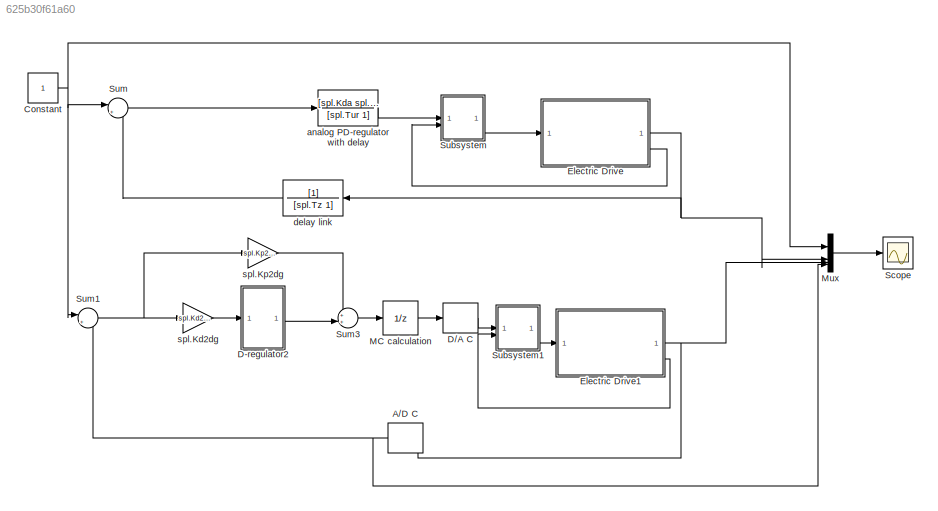
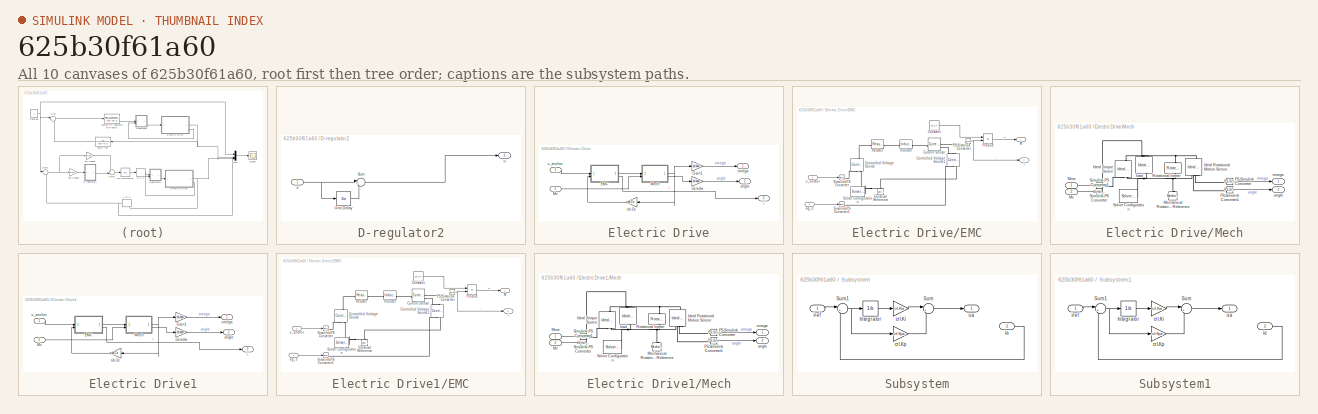
[diagram: thumbnail index - all 10 canvases of the model, root first then tree order]
MODEL slx_625b30f61a60
KIND model
CONFIG AbsTol = auto
CONFIG EnableMultiTasking = off
CONFIG FixedStep = To/100
CONFIG MaxStep = auto
CONFIG MinStep = auto
CONFIG RelTol = 1e-3
CONFIG SampleTimeConstraint = Unconstrained
CONFIG SolverName = ode3
CONFIG StartTime = 0.0
CONFIG StopTime = Tmdl
BLOCK [ZeroOrderHold] A//D C
  SampleTime = To
BLOCK [Constant] Constant
BLOCK [SubSystem] D-regulator2
BLOCK [Sum] D-regulator2/Sum
  Inputs = |+-
BLOCK [UnitDelay] D-regulator2/Unit Delay
  HasFrameUpgradeWarning = on
  SampleTime = To
BLOCK [Inport] D-regulator2/e
BLOCK [Outport] D-regulator2/u
BLOCK [ZeroOrderHold] D//A C
  SampleTime = To
BLOCK [SubSystem] Electric Drive
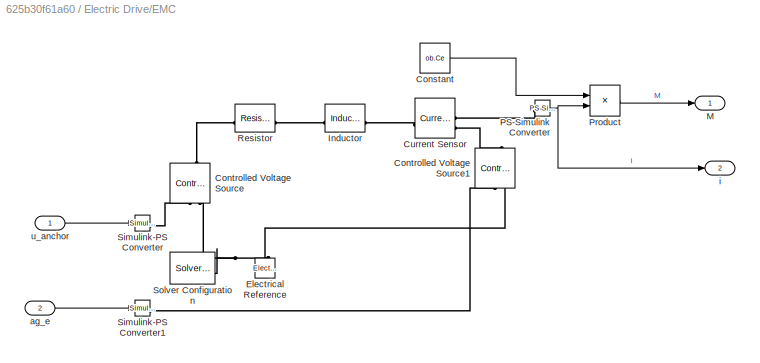
BLOCK [SubSystem] Electric Drive/EMC
BLOCK [Constant] Electric Drive/EMC/Constant
  Value = ob.Ce
BLOCK [Reference] Electric Drive/EMC/Controlled Voltage Source  REF=fl_lib/Electrical/Electrical Sources/Controlled Voltage
Source
  NameLocation = right
  SourceBlock = fl_lib/Electrical/Electrical Sources/Controlled Voltage\nSource
  SourceType = Controlled Voltage\nSource
BLOCK [Reference] Electric Drive/EMC/Controlled Voltage Source1  REF=fl_lib/Electrical/Electrical Sources/Controlled Voltage
Source
  NameLocation = right
  SourceBlock = fl_lib/Electrical/Electrical Sources/Controlled Voltage\nSource
  SourceType = Controlled Voltage\nSource
BLOCK [Reference] Electric Drive/EMC/Current Sensor  REF=fl_lib/Electrical/Electrical Sensors/Current Sensor
  SourceBlock = fl_lib/Electrical/Electrical Sensors/Current Sensor
  SourceType = Current Sensor
BLOCK [Reference] Electric Drive/EMC/Electrical Reference  REF=fl_lib/Electrical/Electrical Elements/Electrical Reference
  NameLocation = right
  SourceBlock = fl_lib/Electrical/Electrical Elements/Electrical Reference
  SourceType = Electrical Reference
BLOCK [Reference] Electric Drive/EMC/Inductor  REF=fl_lib/Electrical/Electrical Elements/Inductor
  SourceBlock = fl_lib/Electrical/Electrical Elements/Inductor
  SourceType = Inductor
BLOCK [Outport] Electric Drive/EMC/M
BLOCK [Reference] Electric Drive/EMC/PS-Simulink Converter  REF=nesl_utility/PS-Simulink
Converter
  SourceBlock = nesl_utility/PS-Simulink\nConverter
  SourceType = PS-Simulink\nConverter
BLOCK [Product] Electric Drive/EMC/Product
BLOCK [Reference] Electric Drive/EMC/Resistor  REF=fl_lib/Electrical/Electrical Elements/Resistor
  SourceBlock = fl_lib/Electrical/Electrical Elements/Resistor
  SourceType = Resistor
BLOCK [Reference] Electric Drive/EMC/Simulink-PS Converter  REF=nesl_utility/Simulink-PS
Converter
  SourceBlock = nesl_utility/Simulink-PS\nConverter
  SourceType = Simulink-PS\nConverter
BLOCK [Reference] Electric Drive/EMC/Simulink-PS Converter1  REF=nesl_utility/Simulink-PS
Converter
  SourceBlock = nesl_utility/Simulink-PS\nConverter
  SourceType = Simulink-PS\nConverter
BLOCK [Reference] Electric Drive/EMC/Solver Configuration  REF=nesl_utility/Solver
Configuration
  SourceBlock = nesl_utility/Solver\nConfiguration
  SourceType = Solver\nConfiguration
BLOCK [Inport] Electric Drive/EMC/ag_e
  Port = 2
BLOCK [Outport] Electric Drive/EMC/i
  Port = 2
BLOCK [Inport] Electric Drive/EMC/u_anchor
BLOCK [Gain] Electric Drive/Gain1
  Gain = ob.kdw
BLOCK [Inport] Electric Drive/Mc
  Port = 2
BLOCK [SubSystem] Electric Drive/Mech
BLOCK [Reference] Electric Drive/Mech/Ideal Rotational Motion Sensor  REF=fl_lib/Mechanical/Mechanical Sensors/Ideal Rotational
Motion Sensor
  NameLocation = left
  SourceBlock = fl_lib/Mechanical/Mechanical Sensors/Ideal Rotational\nMotion Sensor
  SourceType = Ideal Rotational\nMotion Sensor
BLOCK [Reference] Electric Drive/Mech/Ideal Torque Source  REF=fl_lib/Mechanical/Mechanical Sources/Ideal Torque Source
  NameLocation = right
  SourceBlock = fl_lib/Mechanical/Mechanical Sources/Ideal Torque Source
  SourceType = Ideal Torque Source
BLOCK [Inport] Electric Drive/Mech/Mc
  Port = 2
BLOCK [Reference] Electric Drive/Mech/Mechanical Rotational Reference  REF=fl_lib/Mechanical/Rotational Elements/Mechanical
Rotational Reference
  NameLocation = right
  SourceBlock = fl_lib/Mechanical/Rotational Elements/Mechanical\nRotational Reference
  SourceType = Mechanical\nRotational Reference
BLOCK [Inport] Electric Drive/Mech/Mme
BLOCK [Reference] Electric Drive/Mech/PS-Simulink Converter  REF=nesl_utility/PS-Simulink
Converter
  SourceBlock = nesl_utility/PS-Simulink\nConverter
  SourceType = PS-Simulink\nConverter
BLOCK [Reference] Electric Drive/Mech/PS-Simulink Converter1  REF=nesl_utility/PS-Simulink
Converter
  SourceBlock = nesl_utility/PS-Simulink\nConverter
  SourceType = PS-Simulink\nConverter
BLOCK [Reference] Electric Drive/Mech/Rotational Inerter  REF=fl_lib/Mechanical/Rotational Elements/Rotational Inerter
  NameLocation = left
  SourceBlock = fl_lib/Mechanical/Rotational Elements/Rotational Inerter
  SourceType = Rotational Inerter
BLOCK [Reference] Electric Drive/Mech/Simulink-PS Converter  REF=nesl_utility/Simulink-PS
Converter
  SourceBlock = nesl_utility/Simulink-PS\nConverter
  SourceType = Simulink-PS\nConverter
BLOCK [Reference] Electric Drive/Mech/Simulink-PS Converter1  REF=nesl_utility/Simulink-PS
Converter
  SourceBlock = nesl_utility/Simulink-PS\nConverter
  SourceType = Simulink-PS\nConverter
BLOCK [Reference] Electric Drive/Mech/Solver Configuration  REF=nesl_utility/Solver
Configuration
  SourceBlock = nesl_utility/Solver\nConfiguration
  SourceType = Solver\nConfiguration
BLOCK [Outport] Electric Drive/Mech/angle
  Port = 2
BLOCK [Reference] Electric Drive/Mech/load  REF=fl_lib/Mechanical/Mechanical Sources/Ideal Torque Source
  SourceBlock = fl_lib/Mechanical/Mechanical Sources/Ideal Torque Source
  SourceType = Ideal Torque Source
BLOCK [Outport] Electric Drive/Mech/omega
BLOCK [Outport] Electric Drive/angle
  Port = 2
BLOCK [Outport] Electric Drive/i
  Port = 3
BLOCK [Gain] Electric Drive/ob.Ce
  Gain = ob.Ce
BLOCK [Gain] Electric Drive/ob.kdw
  Gain = ob.kdw
  NameLocation = top
BLOCK [Outport] Electric Drive/omega
BLOCK [Inport] Electric Drive/u_anchor
BLOCK [SubSystem] Electric Drive1
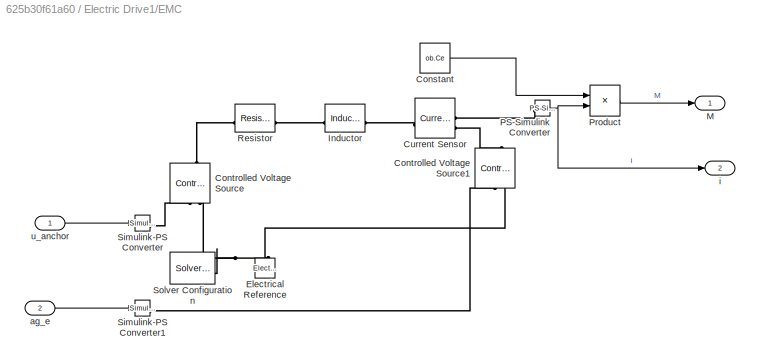
BLOCK [SubSystem] Electric Drive1/EMC
BLOCK [Constant] Electric Drive1/EMC/Constant
  Value = ob.Ce
BLOCK [Reference] Electric Drive1/EMC/Controlled Voltage Source  REF=fl_lib/Electrical/Electrical Sources/Controlled Voltage
Source
  NameLocation = right
  SourceBlock = fl_lib/Electrical/Electrical Sources/Controlled Voltage\nSource
  SourceType = Controlled Voltage\nSource
BLOCK [Reference] Electric Drive1/EMC/Controlled Voltage Source1  REF=fl_lib/Electrical/Electrical Sources/Controlled Voltage
Source
  NameLocation = right
  SourceBlock = fl_lib/Electrical/Electrical Sources/Controlled Voltage\nSource
  SourceType = Controlled Voltage\nSource
BLOCK [Reference] Electric Drive1/EMC/Current Sensor  REF=fl_lib/Electrical/Electrical Sensors/Current Sensor
  SourceBlock = fl_lib/Electrical/Electrical Sensors/Current Sensor
  SourceType = Current Sensor
BLOCK [Reference] Electric Drive1/EMC/Electrical Reference  REF=fl_lib/Electrical/Electrical Elements/Electrical Reference
  NameLocation = right
  SourceBlock = fl_lib/Electrical/Electrical Elements/Electrical Reference
  SourceType = Electrical Reference
BLOCK [Reference] Electric Drive1/EMC/Inductor  REF=fl_lib/Electrical/Electrical Elements/Inductor
  SourceBlock = fl_lib/Electrical/Electrical Elements/Inductor
  SourceType = Inductor
BLOCK [Outport] Electric Drive1/EMC/M
BLOCK [Reference] Electric Drive1/EMC/PS-Simulink Converter  REF=nesl_utility/PS-Simulink
Converter
  SourceBlock = nesl_utility/PS-Simulink\nConverter
  SourceType = PS-Simulink\nConverter
BLOCK [Product] Electric Drive1/EMC/Product
BLOCK [Reference] Electric Drive1/EMC/Resistor  REF=fl_lib/Electrical/Electrical Elements/Resistor
  SourceBlock = fl_lib/Electrical/Electrical Elements/Resistor
  SourceType = Resistor
BLOCK [Reference] Electric Drive1/EMC/Simulink-PS Converter  REF=nesl_utility/Simulink-PS
Converter
  SourceBlock = nesl_utility/Simulink-PS\nConverter
  SourceType = Simulink-PS\nConverter
BLOCK [Reference] Electric Drive1/EMC/Simulink-PS Converter1  REF=nesl_utility/Simulink-PS
Converter
  SourceBlock = nesl_utility/Simulink-PS\nConverter
  SourceType = Simulink-PS\nConverter
BLOCK [Reference] Electric Drive1/EMC/Solver Configuration  REF=nesl_utility/Solver
Configuration
  SourceBlock = nesl_utility/Solver\nConfiguration
  SourceType = Solver\nConfiguration
BLOCK [Inport] Electric Drive1/EMC/ag_e
  Port = 2
BLOCK [Outport] Electric Drive1/EMC/i
  Port = 2
BLOCK [Inport] Electric Drive1/EMC/u_anchor
BLOCK [Gain] Electric Drive1/Gain1
  Gain = ob.kdw
BLOCK [Inport] Electric Drive1/Mc
  Port = 2
BLOCK [SubSystem] Electric Drive1/Mech
BLOCK [Reference] Electric Drive1/Mech/Ideal Rotational Motion Sensor  REF=fl_lib/Mechanical/Mechanical Sensors/Ideal Rotational
Motion Sensor
  NameLocation = left
  SourceBlock = fl_lib/Mechanical/Mechanical Sensors/Ideal Rotational\nMotion Sensor
  SourceType = Ideal Rotational\nMotion Sensor
BLOCK [Reference] Electric Drive1/Mech/Ideal Torque Source  REF=fl_lib/Mechanical/Mechanical Sources/Ideal Torque Source
  NameLocation = right
  SourceBlock = fl_lib/Mechanical/Mechanical Sources/Ideal Torque Source
  SourceType = Ideal Torque Source
BLOCK [Inport] Electric Drive1/Mech/Mc
  Port = 2
BLOCK [Reference] Electric Drive1/Mech/Mechanical Rotational Reference  REF=fl_lib/Mechanical/Rotational Elements/Mechanical
Rotational Reference
  NameLocation = right
  SourceBlock = fl_lib/Mechanical/Rotational Elements/Mechanical\nRotational Reference
  SourceType = Mechanical\nRotational Reference
BLOCK [Inport] Electric Drive1/Mech/Mme
BLOCK [Reference] Electric Drive1/Mech/PS-Simulink Converter  REF=nesl_utility/PS-Simulink
Converter
  SourceBlock = nesl_utility/PS-Simulink\nConverter
  SourceType = PS-Simulink\nConverter
BLOCK [Reference] Electric Drive1/Mech/PS-Simulink Converter1  REF=nesl_utility/PS-Simulink
Converter
  SourceBlock = nesl_utility/PS-Simulink\nConverter
  SourceType = PS-Simulink\nConverter
BLOCK [Reference] Electric Drive1/Mech/Rotational Inerter  REF=fl_lib/Mechanical/Rotational Elements/Rotational Inerter
  NameLocation = left
  SourceBlock = fl_lib/Mechanical/Rotational Elements/Rotational Inerter
  SourceType = Rotational Inerter
BLOCK [Reference] Electric Drive1/Mech/Simulink-PS Converter  REF=nesl_utility/Simulink-PS
Converter
  SourceBlock = nesl_utility/Simulink-PS\nConverter
  SourceType = Simulink-PS\nConverter
BLOCK [Reference] Electric Drive1/Mech/Simulink-PS Converter1  REF=nesl_utility/Simulink-PS
Converter
  SourceBlock = nesl_utility/Simulink-PS\nConverter
  SourceType = Simulink-PS\nConverter
BLOCK [Reference] Electric Drive1/Mech/Solver Configuration  REF=nesl_utility/Solver
Configuration
  SourceBlock = nesl_utility/Solver\nConfiguration
  SourceType = Solver\nConfiguration
BLOCK [Outport] Electric Drive1/Mech/angle
  Port = 2
BLOCK [Reference] Electric Drive1/Mech/load  REF=fl_lib/Mechanical/Mechanical Sources/Ideal Torque Source
  SourceBlock = fl_lib/Mechanical/Mechanical Sources/Ideal Torque Source
  SourceType = Ideal Torque Source
BLOCK [Outport] Electric Drive1/Mech/omega
BLOCK [Outport] Electric Drive1/angle
  Port = 2
BLOCK [Outport] Electric Drive1/i
  Port = 3
BLOCK [Gain] Electric Drive1/ob.Ce
  Gain = ob.Ce
BLOCK [Gain] Electric Drive1/ob.kdw
  Gain = ob.kdw
  NameLocation = top
BLOCK [Outport] Electric Drive1/omega
BLOCK [Inport] Electric Drive1/u_anchor
BLOCK [UnitDelay] MC calculation
  HasFrameUpgradeWarning = on
  SampleTime = To
BLOCK [Mux] Mux
  DisplayOption = bar
BLOCK [Scope] Scope
  Floating = off
  NumInputPorts = 1
  ScopeSpecificationString = Simulink.scopes.TimeScopeBlockCfg('CurrentConfiguration', extmgr.ConfigurationSet(extmgr.Configuration('Core','General UI',true),extmgr.Configuration('Core','Source UI',true),extmgr.Configuration('Sources','WiredSimulink',true,'DataLogging',true,'DataLoggingVariableName','w','DataLoggingSaveFormat','Array'),extmgr.Configuration('Visuals','Time Domain',true,'SerializedDisplays',{struct('MinYLimReal...<+1489ch>
BLOCK [SubSystem] Subsystem
BLOCK [Integrator] Subsystem/Integrator
BLOCK [Sum] Subsystem/Sum
  Inputs = |++
BLOCK [Sum] Subsystem/Sum1
  Inputs = |+-
BLOCK [Gain] Subsystem/crl.Ki
  Gain = crl.Kia
BLOCK [Gain] Subsystem/crl.Kp
  Gain = crl.Kpa
BLOCK [Inport] Subsystem/ia
  Port = 2
BLOCK [Inport] Subsystem/iref
BLOCK [Outport] Subsystem/ua
BLOCK [SubSystem] Subsystem1
BLOCK [Integrator] Subsystem1/Integrator
BLOCK [Sum] Subsystem1/Sum
  Inputs = |++
BLOCK [Sum] Subsystem1/Sum1
  Inputs = |+-
BLOCK [Gain] Subsystem1/crl.Ki
  Gain = crl.Kia
BLOCK [Gain] Subsystem1/crl.Kp
  Gain = crl.Kpa
BLOCK [Inport] Subsystem1/ia
  Port = 2
BLOCK [Inport] Subsystem1/iref
BLOCK [Outport] Subsystem1/ua
BLOCK [Sum] Sum
  Inputs = |+-
BLOCK [Sum] Sum1
  Inputs = |+-
BLOCK [Sum] Sum3
  Inputs = ++|
BLOCK [TransferFcn] analog PD-regulator with delay
  Denominator = [spl.Tur 1]
  Numerator = [spl.Kda spl.Kpa]
BLOCK [TransferFcn] delay link
  Denominator = [spl.Tz 1]
BLOCK [Gain] spl.Kd2dg
  Gain = spl.Kd2dg
BLOCK [Gain] spl.Kp2dg
  Gain = spl.Kp2dg
NET A//D C:1 -> Mux:4, Sum1:2
NET Constant:1 -> Mux:1, Sum1:1, Sum:1
LINE D-regulator2/Sum:1 -> D-regulator2/u:1
LINE D-regulator2/Unit Delay:1 -> D-regulator2/Sum:2
NET D-regulator2/e:1 -> D-regulator2/Sum:1, D-regulator2/Unit Delay:1
LINE D-regulator2:1 -> Sum3:2
LINE D//A C:1 -> Subsystem1:1
LINE Electric Drive/EMC/Constant:1 -> Electric Drive/EMC/Product:1
NET Electric Drive/EMC/PS-Simulink Converter:1 -> Electric Drive/EMC/Product:2, Electric Drive/EMC/i:1
LINE Electric Drive/EMC/Product:1 -> Electric Drive/EMC/M:1
LINE Electric Drive/EMC/ag_e:1 -> Electric Drive/EMC/Simulink-PS Converter1:1
LINE Electric Drive/EMC/u_anchor:1 -> Electric Drive/EMC/Simulink-PS Converter:1
LINE Electric Drive/EMC:1 -> Electric Drive/Mech:1
LINE Electric Drive/EMC:2 -> Electric Drive/i:1
LINE Electric Drive/Gain1:1 -> Electric Drive/omega:1
LINE Electric Drive/Mc:1 -> Electric Drive/Mech:2
LINE Electric Drive/Mech/Mc:1 -> Electric Drive/Mech/Simulink-PS Converter1:1
LINE Electric Drive/Mech/Mme:1 -> Electric Drive/Mech/Simulink-PS Converter:1
LINE Electric Drive/Mech/PS-Simulink Converter1:1 -> Electric Drive/Mech/angle:1
LINE Electric Drive/Mech/PS-Simulink Converter:1 -> Electric Drive/Mech/omega:1
NET Electric Drive/Mech:1 -> Electric Drive/Gain1:1, Electric Drive/ob.Ce:1
LINE Electric Drive/Mech:2 -> Electric Drive/ob.kdw:1
LINE Electric Drive/ob.Ce:1 -> Electric Drive/EMC:2
LINE Electric Drive/ob.kdw:1 -> Electric Drive/angle:1
LINE Electric Drive/u_anchor:1 -> Electric Drive/EMC:1
LINE Electric Drive1/EMC/Constant:1 -> Electric Drive1/EMC/Product:1
NET Electric Drive1/EMC/PS-Simulink Converter:1 -> Electric Drive1/EMC/Product:2, Electric Drive1/EMC/i:1
LINE Electric Drive1/EMC/Product:1 -> Electric Drive1/EMC/M:1
LINE Electric Drive1/EMC/ag_e:1 -> Electric Drive1/EMC/Simulink-PS Converter1:1
LINE Electric Drive1/EMC/u_anchor:1 -> Electric Drive1/EMC/Simulink-PS Converter:1
LINE Electric Drive1/EMC:1 -> Electric Drive1/Mech:1
LINE Electric Drive1/EMC:2 -> Electric Drive1/i:1
LINE Electric Drive1/Gain1:1 -> Electric Drive1/omega:1
LINE Electric Drive1/Mc:1 -> Electric Drive1/Mech:2
LINE Electric Drive1/Mech/Mc:1 -> Electric Drive1/Mech/Simulink-PS Converter1:1
LINE Electric Drive1/Mech/Mme:1 -> Electric Drive1/Mech/Simulink-PS Converter:1
LINE Electric Drive1/Mech/PS-Simulink Converter1:1 -> Electric Drive1/Mech/angle:1
LINE Electric Drive1/Mech/PS-Simulink Converter:1 -> Electric Drive1/Mech/omega:1
NET Electric Drive1/Mech:1 -> Electric Drive1/Gain1:1, Electric Drive1/ob.Ce:1
LINE Electric Drive1/Mech:2 -> Electric Drive1/ob.kdw:1
LINE Electric Drive1/ob.Ce:1 -> Electric Drive1/EMC:2
LINE Electric Drive1/ob.kdw:1 -> Electric Drive1/angle:1
LINE Electric Drive1/u_anchor:1 -> Electric Drive1/EMC:1
NET Electric Drive1:1 -> A//D C:1, Mux:3
LINE Electric Drive1:3 -> Subsystem1:2
NET Electric Drive:1 -> Mux:2, delay link:1
LINE Electric Drive:3 -> Subsystem:2
LINE MC calculation:1 -> D//A C:1
LINE Mux:1 -> Scope:1
LINE Subsystem/Integrator:1 -> Subsystem/crl.Ki:1
NET Subsystem/Sum1:1 -> Subsystem/Integrator:1, Subsystem/crl.Kp:1
LINE Subsystem/Sum:1 -> Subsystem/ua:1
LINE Subsystem/crl.Ki:1 -> Subsystem/Sum:1
LINE Subsystem/crl.Kp:1 -> Subsystem/Sum:2
LINE Subsystem/ia:1 -> Subsystem/Sum1:2
LINE Subsystem/iref:1 -> Subsystem/Sum1:1
LINE Subsystem1/Integrator:1 -> Subsystem1/crl.Ki:1
NET Subsystem1/Sum1:1 -> Subsystem1/Integrator:1, Subsystem1/crl.Kp:1
LINE Subsystem1/Sum:1 -> Subsystem1/ua:1
LINE Subsystem1/crl.Ki:1 -> Subsystem1/Sum:1
LINE Subsystem1/crl.Kp:1 -> Subsystem1/Sum:2
LINE Subsystem1/ia:1 -> Subsystem1/Sum1:2
LINE Subsystem1/iref:1 -> Subsystem1/Sum1:1
LINE Subsystem1:1 -> Electric Drive1:1
LINE Subsystem:1 -> Electric Drive:1
NET Sum1:1 -> spl.Kd2dg:1, spl.Kp2dg:1
LINE Sum3:1 -> MC calculation:1
LINE Sum:1 -> analog PD-regulator with delay:1
LINE analog PD-regulator with delay:1 -> Subsystem:1
LINE delay link:1 -> Sum:2
LINE spl.Kd2dg:1 -> D-regulator2:1
LINE spl.Kp2dg:1 -> Sum3:1
PLINE Electric Drive/EMC/Controlled Voltage Source1:LConn1 -- Electric Drive/EMC/Current Sensor:RConn2
PLINE Electric Drive/EMC/Controlled Voltage Source1:RConn1 -- Electric Drive/EMC/Simulink-PS Converter1:RConn1
PNET net1: Electric Drive/EMC/Controlled Voltage Source1:RConn2 -- Electric Drive/EMC/Controlled Voltage Source:RConn2 -- Electric Drive/EMC/Electrical Reference:LConn1 -- Electric Drive/EMC/Solver Configuration:RConn1
PLINE Electric Drive/EMC/Controlled Voltage Source:LConn1 -- Electric Drive/EMC/Resistor:LConn1
PLINE Electric Drive/EMC/Controlled Voltage Source:RConn1 -- Electric Drive/EMC/Simulink-PS Converter:RConn1
PLINE Electric Drive/EMC/Current Sensor:LConn1 -- Electric Drive/EMC/Inductor:RConn1
PLINE Electric Drive/EMC/Current Sensor:RConn1 -- Electric Drive/EMC/PS-Simulink Converter:LConn1
PLINE Electric Drive/EMC/Inductor:LConn1 -- Electric Drive/EMC/Resistor:RConn1
PNET net2: Electric Drive/Mech/Ideal Rotational Motion Sensor:LConn1 -- Electric Drive/Mech/Ideal Torque Source:LConn1 -- Electric Drive/Mech/Rotational Inerter:LConn1 -- Electric Drive/Mech/load:RConn2
PNET net3: Electric Drive/Mech/Ideal Rotational Motion Sensor:RConn1 -- Electric Drive/Mech/Ideal Torque Source:RConn2 -- Electric Drive/Mech/Mechanical Rotational Reference:LConn1 -- Electric Drive/Mech/Rotational Inerter:RConn1 -- Electric Drive/Mech/Solver Configuration:RConn1 -- Electric Drive/Mech/load:LConn1
PLINE Electric Drive/Mech/Ideal Rotational Motion Sensor:RConn2 -- Electric Drive/Mech/PS-Simulink Converter:LConn1
PLINE Electric Drive/Mech/Ideal Rotational Motion Sensor:RConn3 -- Electric Drive/Mech/PS-Simulink Converter1:LConn1
PLINE Electric Drive/Mech/Ideal Torque Source:RConn1 -- Electric Drive/Mech/Simulink-PS Converter:RConn1
PLINE Electric Drive/Mech/Simulink-PS Converter1:RConn1 -- Electric Drive/Mech/load:RConn1
PLINE Electric Drive1/EMC/Controlled Voltage Source1:LConn1 -- Electric Drive1/EMC/Current Sensor:RConn2
PLINE Electric Drive1/EMC/Controlled Voltage Source1:RConn1 -- Electric Drive1/EMC/Simulink-PS Converter1:RConn1
PNET net4: Electric Drive1/EMC/Controlled Voltage Source1:RConn2 -- Electric Drive1/EMC/Controlled Voltage Source:RConn2 -- Electric Drive1/EMC/Electrical Reference:LConn1 -- Electric Drive1/EMC/Solver Configuration:RConn1
PLINE Electric Drive1/EMC/Controlled Voltage Source:LConn1 -- Electric Drive1/EMC/Resistor:LConn1
PLINE Electric Drive1/EMC/Controlled Voltage Source:RConn1 -- Electric Drive1/EMC/Simulink-PS Converter:RConn1
PLINE Electric Drive1/EMC/Current Sensor:LConn1 -- Electric Drive1/EMC/Inductor:RConn1
PLINE Electric Drive1/EMC/Current Sensor:RConn1 -- Electric Drive1/EMC/PS-Simulink Converter:LConn1
PLINE Electric Drive1/EMC/Inductor:LConn1 -- Electric Drive1/EMC/Resistor:RConn1
PNET net5: Electric Drive1/Mech/Ideal Rotational Motion Sensor:LConn1 -- Electric Drive1/Mech/Ideal Torque Source:LConn1 -- Electric Drive1/Mech/Rotational Inerter:LConn1 -- Electric Drive1/Mech/load:RConn2
PNET net6: Electric Drive1/Mech/Ideal Rotational Motion Sensor:RConn1 -- Electric Drive1/Mech/Ideal Torque Source:RConn2 -- Electric Drive1/Mech/Mechanical Rotational Reference:LConn1 -- Electric Drive1/Mech/Rotational Inerter:RConn1 -- Electric Drive1/Mech/Solver Configuration:RConn1 -- Electric Drive1/Mech/load:LConn1
PLINE Electric Drive1/Mech/Ideal Rotational Motion Sensor:RConn2 -- Electric Drive1/Mech/PS-Simulink Converter:LConn1
PLINE Electric Drive1/Mech/Ideal Rotational Motion Sensor:RConn3 -- Electric Drive1/Mech/PS-Simulink Converter1:LConn1
PLINE Electric Drive1/Mech/Ideal Torque Source:RConn1 -- Electric Drive1/Mech/Simulink-PS Converter:RConn1
PLINE Electric Drive1/Mech/Simulink-PS Converter1:RConn1 -- Electric Drive1/Mech/load:RConn1
note: NET lines group one-source signal fan-out (src -> all destinations, sorted); 1:1 wires keep LINE; PNET lines group multi-terminal physical nets as a canonical sorted terminal list (undirected conserving connections); 2-terminal nets keep the pairwise PLINE form
